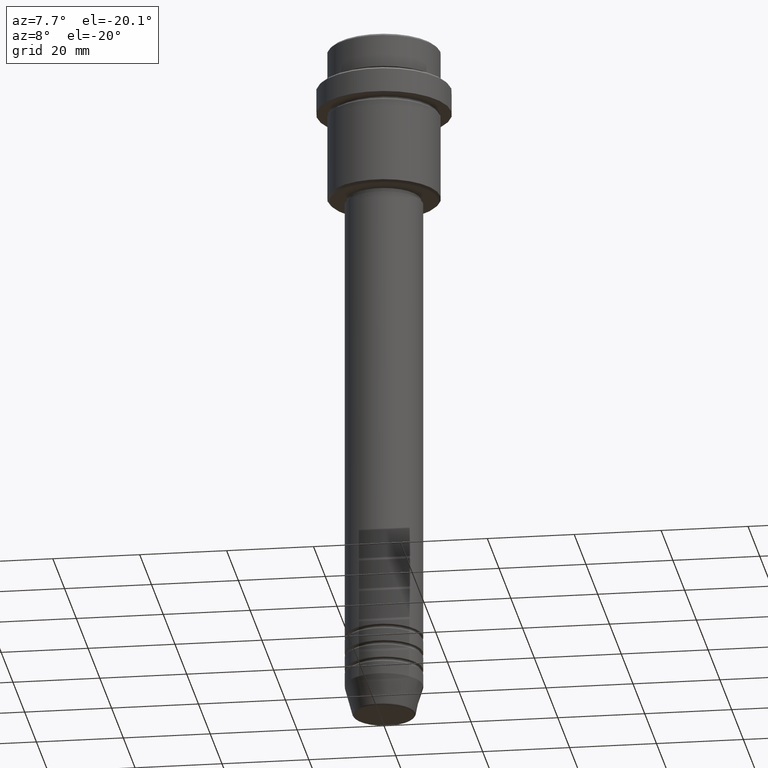
[diagram: clean part render]
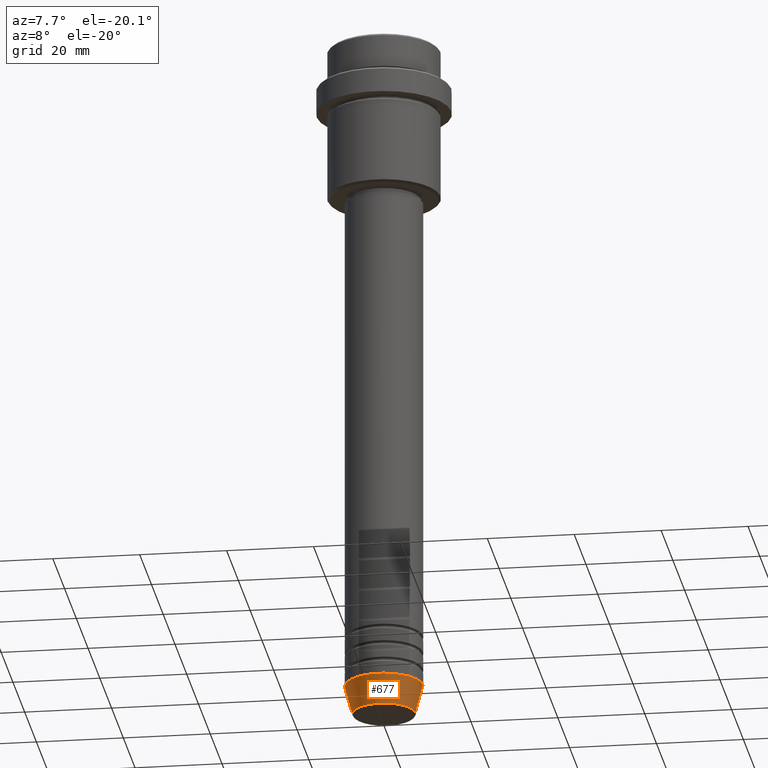
[diagram: same view with one face highlighted and labeled with its STEP entity id]
A machine part, auxiliary view. The second image highlights one B-rep face of the part: STEP entity #677.
In plain terms, the highlighted conical surface has half-angle 15 deg.
Its self-contained STEP definition (entity closure, byte-faithful):
#10 = CARTESIAN_POINT ( 'NONE',  ( -9.000000000000000000, 1.102182119232617714E-15, -154.0000000000000000 ) ) ;
#49 = ORIENTED_EDGE ( 'NONE', *, *, #321, .T. ) ;
#58 = CONICAL_SURFACE ( 'NONE', #1195, 9.000000000000000000, 0.2617993877991500740 ) ;
#61 = CIRCLE ( 'NONE', #291, 7.223655072137196598 ) ;
#67 = LINE ( 'NONE', #157, #645 ) ;
#157 = CARTESIAN_POINT ( 'NONE',  ( 9.000000000000000000, 0.000000000000000000, -154.0000000000000000 ) ) ;
#178 = EDGE_CURVE ( 'NONE', #1134, #1218, #766, .T. ) ;
#197 = CIRCLE ( 'NONE', #782, 9.000000000000000000 ) ;
#291 = AXIS2_PLACEMENT_3D ( 'NONE', #589, #942, #1374 ) ;
#321 = EDGE_CURVE ( 'NONE', #695, #591, #67, .T. ) ;
#334 = CARTESIAN_POINT ( 'NONE',  ( 0.000000000000000000, 0.000000000000000000, -154.0000000000000000 ) ) ;
#428 = CARTESIAN_POINT ( 'NONE',  ( 9.000000000000000000, 0.000000000000000000, -154.0000000000000000 ) ) ;
#461 = DIRECTION ( 'NONE',  ( -0.2588190451025213501, 3.169619151431772337E-17, 0.9659258262890680902 ) ) ;
#469 = CARTESIAN_POINT ( 'NONE',  ( -9.000000000000000000, 1.102182119232617714E-15, -154.0000000000000000 ) ) ;
#589 = CARTESIAN_POINT ( 'NONE',  ( 0.000000000000000000, 0.000000000000000000, -160.6294095225512422 ) ) ;
#591 = VERTEX_POINT ( 'NONE', #428 ) ;
#645 = VECTOR ( 'NONE', #1035, 1000.000000000000000 ) ;
#664 = ORIENTED_EDGE ( 'NONE', *, *, #1317, .T. ) ;
#677 = ADVANCED_FACE ( 'NONE', ( #858 ), #58, .T. ) ;
#681 = EDGE_CURVE ( 'NONE', #1218, #591, #197, .T. ) ;
#695 = VERTEX_POINT ( 'NONE', #1278 ) ;
#718 = ORIENTED_EDGE ( 'NONE', *, *, #178, .F. ) ;
#766 = LINE ( 'NONE', #10, #848 ) ;
#782 = AXIS2_PLACEMENT_3D ( 'NONE', #334, #958, #1411 ) ;
#837 = ORIENTED_EDGE ( 'NONE', *, *, #681, .F. ) ;
#848 = VECTOR ( 'NONE', #461, 1000.000000000000000 ) ;
#858 = FACE_OUTER_BOUND ( 'NONE', #894, .T. ) ;
#870 = DIRECTION ( 'NONE',  ( -0.000000000000000000, -0.000000000000000000, 1.000000000000000000 ) ) ;
#894 = EDGE_LOOP ( 'NONE', ( #718, #664, #49, #837 ) ) ;
#942 = DIRECTION ( 'NONE',  ( -0.000000000000000000, -0.000000000000000000, 1.000000000000000000 ) ) ;
#958 = DIRECTION ( 'NONE',  ( -0.000000000000000000, -0.000000000000000000, 1.000000000000000000 ) ) ;
#1035 = DIRECTION ( 'NONE',  ( 0.2588190451025213501, 0.000000000000000000, 0.9659258262890680902 ) ) ;
#1065 = CARTESIAN_POINT ( 'NONE',  ( -7.223655072137197486, 9.934123627281769054E-16, -160.6294095225512422 ) ) ;
#1092 = CARTESIAN_POINT ( 'NONE',  ( 0.000000000000000000, 0.000000000000000000, -154.0000000000000000 ) ) ;
#1134 = VERTEX_POINT ( 'NONE', #1065 ) ;
#1195 = AXIS2_PLACEMENT_3D ( 'NONE', #1092, #870, #1293 ) ;
#1218 = VERTEX_POINT ( 'NONE', #469 ) ;
#1278 = CARTESIAN_POINT ( 'NONE',  ( 7.223655072137196598, 0.000000000000000000, -160.6294095225512422 ) ) ;
#1293 = DIRECTION ( 'NONE',  ( 1.000000000000000000, 0.000000000000000000, 0.000000000000000000 ) ) ;
#1317 = EDGE_CURVE ( 'NONE', #1134, #695, #61, .T. ) ;
#1374 = DIRECTION ( 'NONE',  ( 1.000000000000000000, 0.000000000000000000, 0.000000000000000000 ) ) ;
#1411 = DIRECTION ( 'NONE',  ( 1.000000000000000000, 0.000000000000000000, 0.000000000000000000 ) ) ;